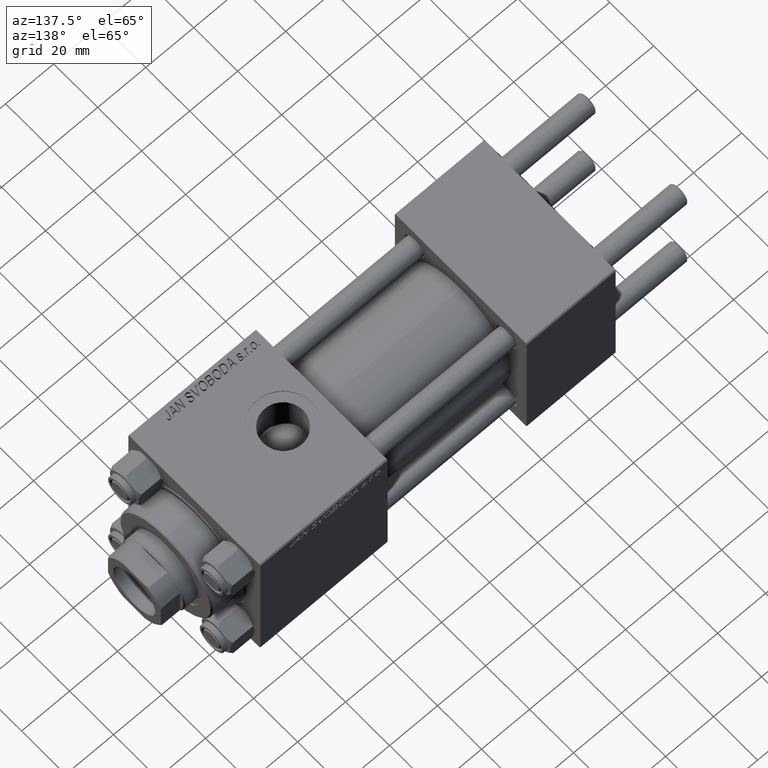
[diagram: clean part render]
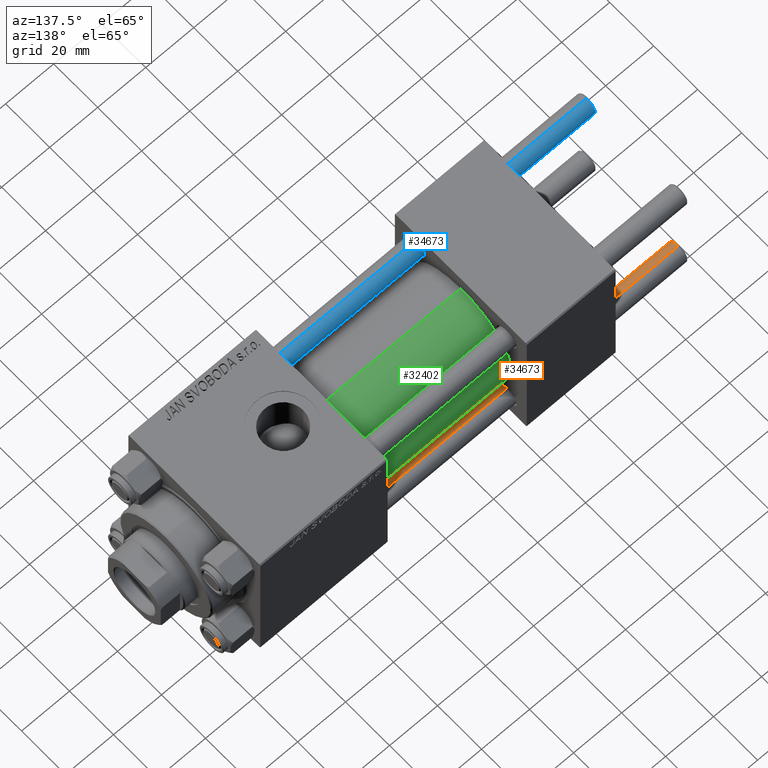
[diagram: same view with three faces highlighted in distinct colors, each labeled with its STEP entity id]
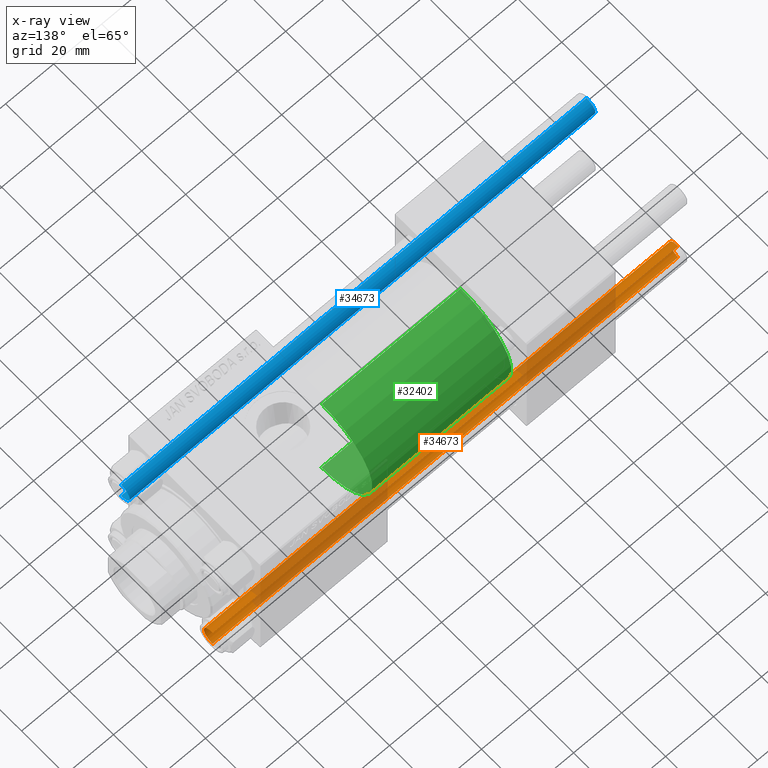
[diagram: x-ray of the same camera — body ghosted, the three highlighted faces saturated]
A machine part, auxiliary view with three faces highlighted in distinct colors.
The next image is the same camera in x-ray (body ghosted, the three faces saturated) — at least one of them is partly hidden behind the body in this view.
Their STEP definitions:

[orange] entity #34673 — the highlighted cylindrical surface (edge-blend (fillet) strip) has radius 4 mm, axis along (1, 0, -0).
#237 = VECTOR ( 'NONE', #10598, 1000.000000000000000 ) ;
#567 = CIRCLE ( 'NONE', #2961, 4.000000000000000000 ) ;
#2961 = AXIS2_PLACEMENT_3D ( 'NONE', #34989, #35237, #31464 ) ;
#3811 = EDGE_LOOP ( 'NONE', ( #41150, #12152, #46248, #9422 ) ) ;
#6890 = CARTESIAN_POINT ( 'NONE',  ( 0.000000000000000000, 0.000000000000000000, 0.5000000000000004441 ) ) ;
#8747 = CIRCLE ( 'NONE', #39345, 4.000000000000000000 ) ;
#9422 = ORIENTED_EDGE ( 'NONE', *, *, #46824, .T. ) ;
#10598 = DIRECTION ( 'NONE',  ( -0.000000000000000000, -0.000000000000000000, -1.000000000000000000 ) ) ;
#11256 = EDGE_CURVE ( 'NONE', #30233, #30016, #22961, .T. ) ;
#11690 = FACE_OUTER_BOUND ( 'NONE', #3811, .T. ) ;
#12152 = ORIENTED_EDGE ( 'NONE', *, *, #21618, .T. ) ;
#14324 = CARTESIAN_POINT ( 'NONE',  ( -4.000000000000000000, 0.000000000000000000, 195.0000000000000000 ) ) ;
#16206 = CARTESIAN_POINT ( 'NONE',  ( -4.000000000000000000, 0.000000000000000000, 194.5000000000000568 ) ) ;
#21618 = EDGE_CURVE ( 'NONE', #30233, #40483, #567, .T. ) ;
#22961 = LINE ( 'NONE', #26242, #237 ) ;
#25329 = EDGE_CURVE ( 'NONE', #40483, #32936, #37531, .T. ) ;
#25995 = CARTESIAN_POINT ( 'NONE',  ( -4.000000000000000000, 0.000000000000000000, 0.5000000000000004441 ) ) ;
#26242 = CARTESIAN_POINT ( 'NONE',  ( 4.000000000000000000, 4.898587196589412829E-16, 195.0000000000000000 ) ) ;
#26587 = CARTESIAN_POINT ( 'NONE',  ( 0.000000000000000000, 0.000000000000000000, 195.0000000000000000 ) ) ;
#27251 = VECTOR ( 'NONE', #37788, 1000.000000000000000 ) ;
#30016 = VERTEX_POINT ( 'NONE', #48394 ) ;
#30233 = VERTEX_POINT ( 'NONE', #30646 ) ;
#30646 = CARTESIAN_POINT ( 'NONE',  ( 4.000000000000000000, 4.898587196589412829E-16, 194.5000000000000568 ) ) ;
#31464 = DIRECTION ( 'NONE',  ( 1.000000000000000000, 0.000000000000000000, 0.000000000000000000 ) ) ;
#32936 = VERTEX_POINT ( 'NONE', #25995 ) ;
#34662 = DIRECTION ( 'NONE',  ( -1.000000000000000000, 0.000000000000000000, 0.000000000000000000 ) ) ;
#34673 = ADVANCED_FACE ( 'NONE', ( #11690 ), #45757, .T. ) ;
#34989 = CARTESIAN_POINT ( 'NONE',  ( 0.000000000000000000, 0.000000000000000000, 194.5000000000000568 ) ) ;
#35237 = DIRECTION ( 'NONE',  ( 0.000000000000000000, 0.000000000000000000, -1.000000000000000000 ) ) ;
#37177 = DIRECTION ( 'NONE',  ( -0.000000000000000000, -0.000000000000000000, 1.000000000000000000 ) ) ;
#37531 = LINE ( 'NONE', #14324, #27251 ) ;
#37681 = DIRECTION ( 'NONE',  ( -0.000000000000000000, -0.000000000000000000, -1.000000000000000000 ) ) ;
#37788 = DIRECTION ( 'NONE',  ( -0.000000000000000000, -0.000000000000000000, -1.000000000000000000 ) ) ;
#38732 = AXIS2_PLACEMENT_3D ( 'NONE', #26587, #37681, #34662 ) ;
#39345 = AXIS2_PLACEMENT_3D ( 'NONE', #6890, #37177, #41217 ) ;
#40483 = VERTEX_POINT ( 'NONE', #16206 ) ;
#41150 = ORIENTED_EDGE ( 'NONE', *, *, #11256, .F. ) ;
#41217 = DIRECTION ( 'NONE',  ( 1.000000000000000000, 0.000000000000000000, 0.000000000000000000 ) ) ;
#45757 = CYLINDRICAL_SURFACE ( 'NONE', #38732, 4.000000000000000000 ) ;
#46248 = ORIENTED_EDGE ( 'NONE', *, *, #25329, .T. ) ;
#46824 = EDGE_CURVE ( 'NONE', #32936, #30016, #8747, .T. ) ;
#48394 = CARTESIAN_POINT ( 'NONE',  ( 4.000000000000000000, 4.898587196589412829E-16, 0.5000000000000004441 ) ) ;

[blue] entity #34673 — the highlighted cylindrical surface (edge-blend (fillet) strip) has radius 4 mm, axis along (1, -0, 0).
#237 = VECTOR ( 'NONE', #10598, 1000.000000000000000 ) ;
#567 = CIRCLE ( 'NONE', #2961, 4.000000000000000000 ) ;
#2961 = AXIS2_PLACEMENT_3D ( 'NONE', #34989, #35237, #31464 ) ;
#3811 = EDGE_LOOP ( 'NONE', ( #41150, #12152, #46248, #9422 ) ) ;
#6890 = CARTESIAN_POINT ( 'NONE',  ( 0.000000000000000000, 0.000000000000000000, 0.5000000000000004441 ) ) ;
#8747 = CIRCLE ( 'NONE', #39345, 4.000000000000000000 ) ;
#9422 = ORIENTED_EDGE ( 'NONE', *, *, #46824, .T. ) ;
#10598 = DIRECTION ( 'NONE',  ( -0.000000000000000000, -0.000000000000000000, -1.000000000000000000 ) ) ;
#11256 = EDGE_CURVE ( 'NONE', #30233, #30016, #22961, .T. ) ;
#11690 = FACE_OUTER_BOUND ( 'NONE', #3811, .T. ) ;
#12152 = ORIENTED_EDGE ( 'NONE', *, *, #21618, .T. ) ;
#14324 = CARTESIAN_POINT ( 'NONE',  ( -4.000000000000000000, 0.000000000000000000, 195.0000000000000000 ) ) ;
#16206 = CARTESIAN_POINT ( 'NONE',  ( -4.000000000000000000, 0.000000000000000000, 194.5000000000000568 ) ) ;
#21618 = EDGE_CURVE ( 'NONE', #30233, #40483, #567, .T. ) ;
#22961 = LINE ( 'NONE', #26242, #237 ) ;
#25329 = EDGE_CURVE ( 'NONE', #40483, #32936, #37531, .T. ) ;
#25995 = CARTESIAN_POINT ( 'NONE',  ( -4.000000000000000000, 0.000000000000000000, 0.5000000000000004441 ) ) ;
#26242 = CARTESIAN_POINT ( 'NONE',  ( 4.000000000000000000, 4.898587196589412829E-16, 195.0000000000000000 ) ) ;
#26587 = CARTESIAN_POINT ( 'NONE',  ( 0.000000000000000000, 0.000000000000000000, 195.0000000000000000 ) ) ;
#27251 = VECTOR ( 'NONE', #37788, 1000.000000000000000 ) ;
#30016 = VERTEX_POINT ( 'NONE', #48394 ) ;
#30233 = VERTEX_POINT ( 'NONE', #30646 ) ;
#30646 = CARTESIAN_POINT ( 'NONE',  ( 4.000000000000000000, 4.898587196589412829E-16, 194.5000000000000568 ) ) ;
#31464 = DIRECTION ( 'NONE',  ( 1.000000000000000000, 0.000000000000000000, 0.000000000000000000 ) ) ;
#32936 = VERTEX_POINT ( 'NONE', #25995 ) ;
#34662 = DIRECTION ( 'NONE',  ( -1.000000000000000000, 0.000000000000000000, 0.000000000000000000 ) ) ;
#34673 = ADVANCED_FACE ( 'NONE', ( #11690 ), #45757, .T. ) ;
#34989 = CARTESIAN_POINT ( 'NONE',  ( 0.000000000000000000, 0.000000000000000000, 194.5000000000000568 ) ) ;
#35237 = DIRECTION ( 'NONE',  ( 0.000000000000000000, 0.000000000000000000, -1.000000000000000000 ) ) ;
#37177 = DIRECTION ( 'NONE',  ( -0.000000000000000000, -0.000000000000000000, 1.000000000000000000 ) ) ;
#37531 = LINE ( 'NONE', #14324, #27251 ) ;
#37681 = DIRECTION ( 'NONE',  ( -0.000000000000000000, -0.000000000000000000, -1.000000000000000000 ) ) ;
#37788 = DIRECTION ( 'NONE',  ( -0.000000000000000000, -0.000000000000000000, -1.000000000000000000 ) ) ;
#38732 = AXIS2_PLACEMENT_3D ( 'NONE', #26587, #37681, #34662 ) ;
#39345 = AXIS2_PLACEMENT_3D ( 'NONE', #6890, #37177, #41217 ) ;
#40483 = VERTEX_POINT ( 'NONE', #16206 ) ;
#41150 = ORIENTED_EDGE ( 'NONE', *, *, #11256, .F. ) ;
#41217 = DIRECTION ( 'NONE',  ( 1.000000000000000000, 0.000000000000000000, 0.000000000000000000 ) ) ;
#45757 = CYLINDRICAL_SURFACE ( 'NONE', #38732, 4.000000000000000000 ) ;
#46248 = ORIENTED_EDGE ( 'NONE', *, *, #25329, .T. ) ;
#46824 = EDGE_CURVE ( 'NONE', #32936, #30016, #8747, .T. ) ;
#48394 = CARTESIAN_POINT ( 'NONE',  ( 4.000000000000000000, 4.898587196589412829E-16, 0.5000000000000004441 ) ) ;

[green] entity #32402 — the highlighted cylindrical surface (partial cylindrical patch) has radius 23 mm, axis along (-1, -0, -0).
#335 = VERTEX_POINT ( 'NONE', #13534 ) ;
#1088 = CIRCLE ( 'NONE', #7522, 23.00000000000000000 ) ;
#3242 = CARTESIAN_POINT ( 'NONE',  ( 95.00000000000000000, 2.816687638038911957E-15, -23.00000000000000000 ) ) ;
#4917 = CARTESIAN_POINT ( 'NONE',  ( 95.00000000000000000, 2.816687638038911957E-15, -23.00000000000000000 ) ) ;
#7522 = AXIS2_PLACEMENT_3D ( 'NONE', #16305, #47100, #31964 ) ;
#9272 = EDGE_CURVE ( 'NONE', #34372, #335, #1088, .T. ) ;
#9994 = VERTEX_POINT ( 'NONE', #38272 ) ;
#10720 = CARTESIAN_POINT ( 'NONE',  ( 95.00000000000000000, 0.000000000000000000, 0.000000000000000000 ) ) ;
#10869 = VECTOR ( 'NONE', #40317, 1000.000000000000000 ) ;
#12205 = DIRECTION ( 'NONE',  ( 1.000000000000000000, -0.000000000000000000, 0.000000000000000000 ) ) ;
#13534 = CARTESIAN_POINT ( 'NONE',  ( 95.00000000000000000, 0.000000000000000000, 23.00000000000000000 ) ) ;
#14574 = ORIENTED_EDGE ( 'NONE', *, *, #37995, .F. ) ;
#15991 = DIRECTION ( 'NONE',  ( 0.000000000000000000, 0.000000000000000000, 1.000000000000000000 ) ) ;
#16305 = CARTESIAN_POINT ( 'NONE',  ( 95.00000000000000000, 0.000000000000000000, 0.000000000000000000 ) ) ;
#19820 = LINE ( 'NONE', #4917, #23942 ) ;
#21472 = ORIENTED_EDGE ( 'NONE', *, *, #37162, .T. ) ;
#21990 = AXIS2_PLACEMENT_3D ( 'NONE', #34422, #12205, #15991 ) ;
#23942 = VECTOR ( 'NONE', #42778, 1000.000000000000000 ) ;
#24650 = FACE_OUTER_BOUND ( 'NONE', #44151, .T. ) ;
#25134 = DIRECTION ( 'NONE',  ( -1.000000000000000000, -0.000000000000000000, -0.000000000000000000 ) ) ;
#26037 = EDGE_CURVE ( 'NONE', #34372, #33266, #19820, .T. ) ;
#28200 = AXIS2_PLACEMENT_3D ( 'NONE', #10720, #25134, #37466 ) ;
#28938 = CARTESIAN_POINT ( 'NONE',  ( 37.00000000000000000, 2.816687638038911957E-15, -23.00000000000000000 ) ) ;
#31964 = DIRECTION ( 'NONE',  ( 0.000000000000000000, 0.000000000000000000, -1.000000000000000000 ) ) ;
#32402 = ADVANCED_FACE ( 'NONE', ( #24650 ), #40033, .T. ) ;
#33266 = VERTEX_POINT ( 'NONE', #28938 ) ;
#33273 = CIRCLE ( 'NONE', #21990, 23.00000000000000000 ) ;
#34372 = VERTEX_POINT ( 'NONE', #3242 ) ;
#34422 = CARTESIAN_POINT ( 'NONE',  ( 37.00000000000000000, 0.000000000000000000, 0.000000000000000000 ) ) ;
#37162 = EDGE_CURVE ( 'NONE', #33266, #9994, #33273, .T. ) ;
#37466 = DIRECTION ( 'NONE',  ( 0.000000000000000000, 0.000000000000000000, 1.000000000000000000 ) ) ;
#37995 = EDGE_CURVE ( 'NONE', #335, #9994, #49130, .T. ) ;
#38272 = CARTESIAN_POINT ( 'NONE',  ( 37.00000000000000000, 0.000000000000000000, 23.00000000000000000 ) ) ;
#40033 = CYLINDRICAL_SURFACE ( 'NONE', #28200, 23.00000000000000000 ) ;
#40317 = DIRECTION ( 'NONE',  ( -1.000000000000000000, -0.000000000000000000, -0.000000000000000000 ) ) ;
#41429 = ORIENTED_EDGE ( 'NONE', *, *, #26037, .T. ) ;
#42192 = ORIENTED_EDGE ( 'NONE', *, *, #9272, .F. ) ;
#42778 = DIRECTION ( 'NONE',  ( -1.000000000000000000, -0.000000000000000000, -0.000000000000000000 ) ) ;
#44151 = EDGE_LOOP ( 'NONE', ( #42192, #41429, #21472, #14574 ) ) ;
#44846 = CARTESIAN_POINT ( 'NONE',  ( 95.00000000000000000, 0.000000000000000000, 23.00000000000000000 ) ) ;
#47100 = DIRECTION ( 'NONE',  ( 1.000000000000000000, 0.000000000000000000, 0.000000000000000000 ) ) ;
#49130 = LINE ( 'NONE', #44846, #10869 ) ;